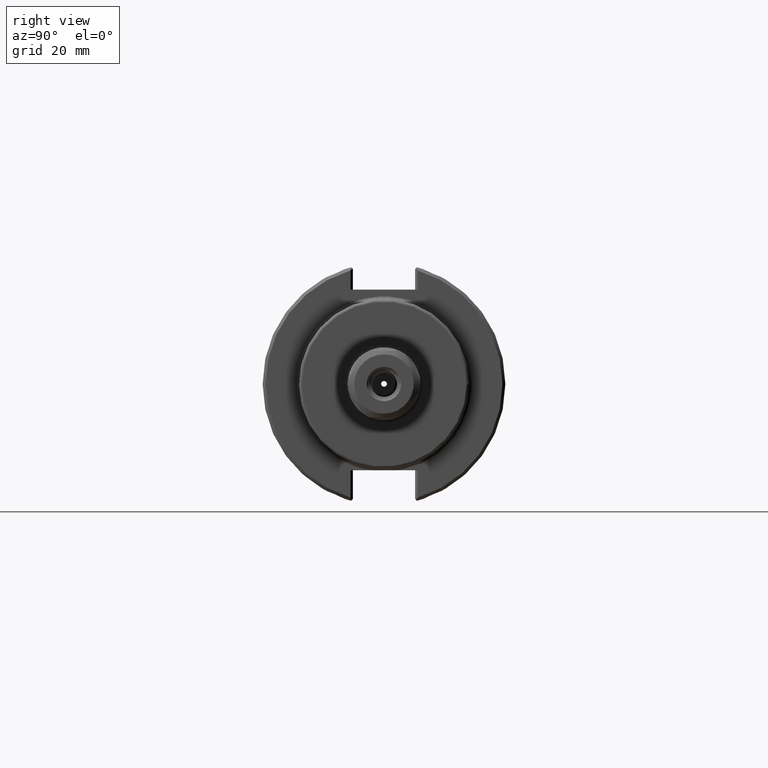
[diagram: clean part render]
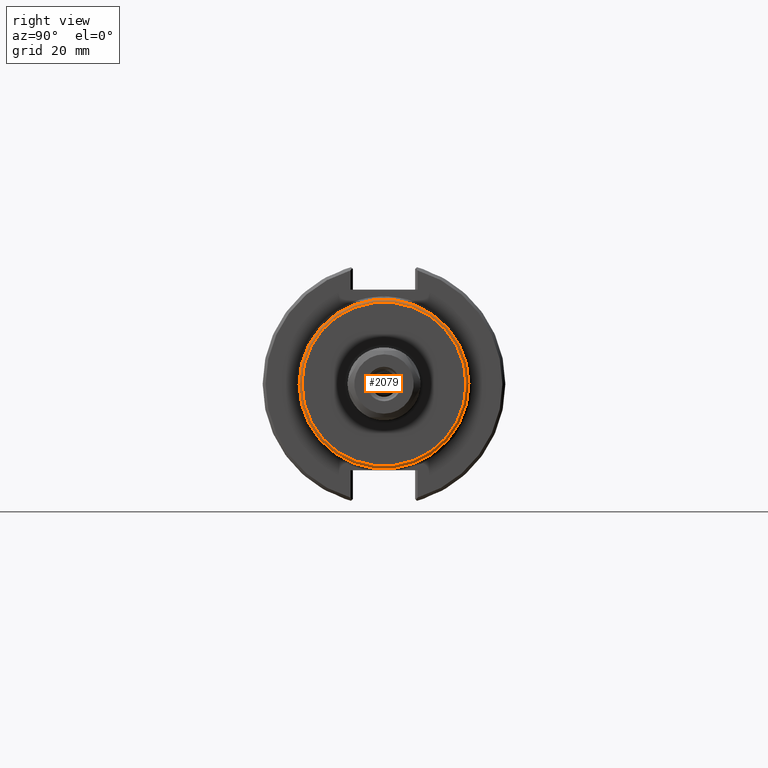
[diagram: same view with one face highlighted and labeled with its STEP entity id]
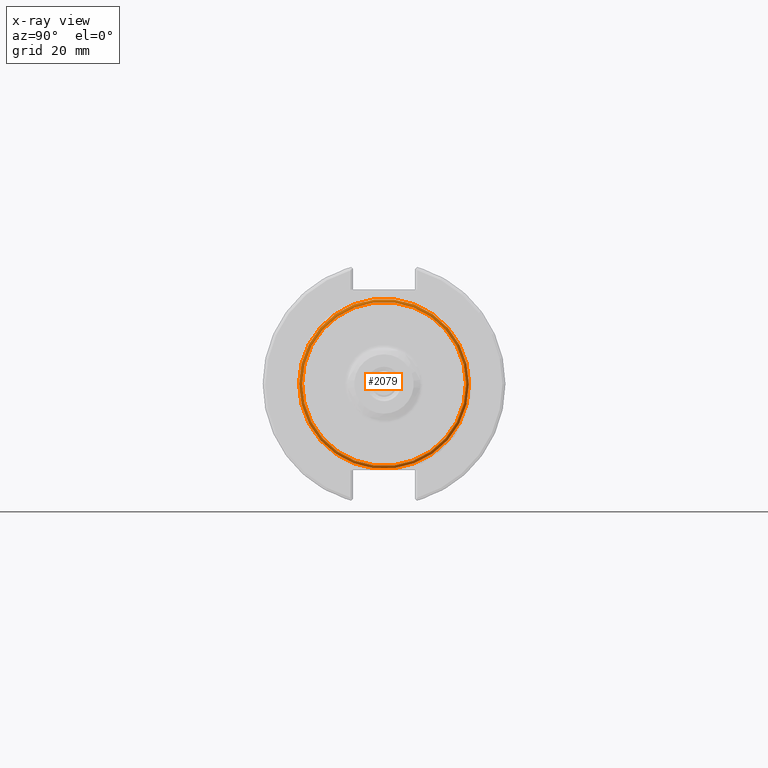
[diagram: x-ray of the same camera — body ghosted, the highlighted face saturated]
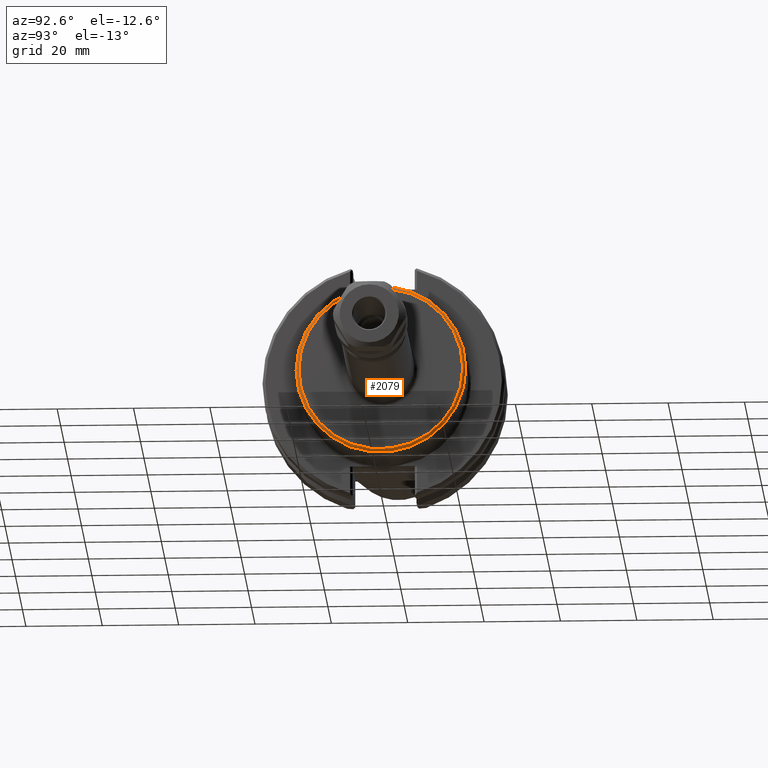
[diagram: same view with one face highlighted and labeled with its STEP entity id]
A machine part, right view. The second image highlights one B-rep face of the part: STEP entity #2079.
The next image is the same camera in x-ray: the body ghosted, the highlighted face saturated — about 0% of this face is hidden behind the body in this view.
A second angle (auxiliary view) of the same face is appended — the face is thin or edge-on in the first view.
In plain terms, the highlighted toroidal blend (fillet) surface has major radius 21.463 mm and minor (blend) radius 0.762 mm.
Its self-contained STEP definition (entity closure, byte-faithful):
#439=FACE_BOUND('',#632,.T.);
#496=FACE_OUTER_BOUND('',#631,.T.);
#631=EDGE_LOOP('',(#1437));
#632=EDGE_LOOP('',(#1438));
#819=CIRCLE('',#2220,0.875);
#820=CIRCLE('',#2222,0.845);
#942=VERTEX_POINT('',#3071);
#943=VERTEX_POINT('',#3074);
#1150=EDGE_CURVE('',#942,#942,#819,.T.);
#1151=EDGE_CURVE('',#943,#943,#820,.T.);
#1437=ORIENTED_EDGE('',*,*,#1150,.T.);
#1438=ORIENTED_EDGE('',*,*,#1151,.T.);
#1991=TOROIDAL_SURFACE('',#2221,0.845,0.03);
#2079=ADVANCED_FACE('',(#496,#439),#1991,.T.);
#2220=AXIS2_PLACEMENT_3D('',#3072,#2471,#2472);
#2221=AXIS2_PLACEMENT_3D('',#3073,#2473,#2474);
#2222=AXIS2_PLACEMENT_3D('',#3075,#2475,#2476);
#2471=DIRECTION('center_axis',(1.,0.,0.));
#2472=DIRECTION('ref_axis',(0.,-1.,1.22464679914735E-16));
#2473=DIRECTION('center_axis',(1.,0.,0.));
#2474=DIRECTION('ref_axis',(0.,0.,-1.));
#2475=DIRECTION('center_axis',(-1.,0.,0.));
#2476=DIRECTION('ref_axis',(0.,-1.,1.22464679914735E-16));
#3071=CARTESIAN_POINT('',(1.35,0.875,0.));
#3072=CARTESIAN_POINT('Origin',(1.35,0.,0.));
#3073=CARTESIAN_POINT('Origin',(1.35,0.,0.));
#3074=CARTESIAN_POINT('',(1.38,0.845,-2.06965309055903E-16));
#3075=CARTESIAN_POINT('Origin',(1.38,0.,0.));